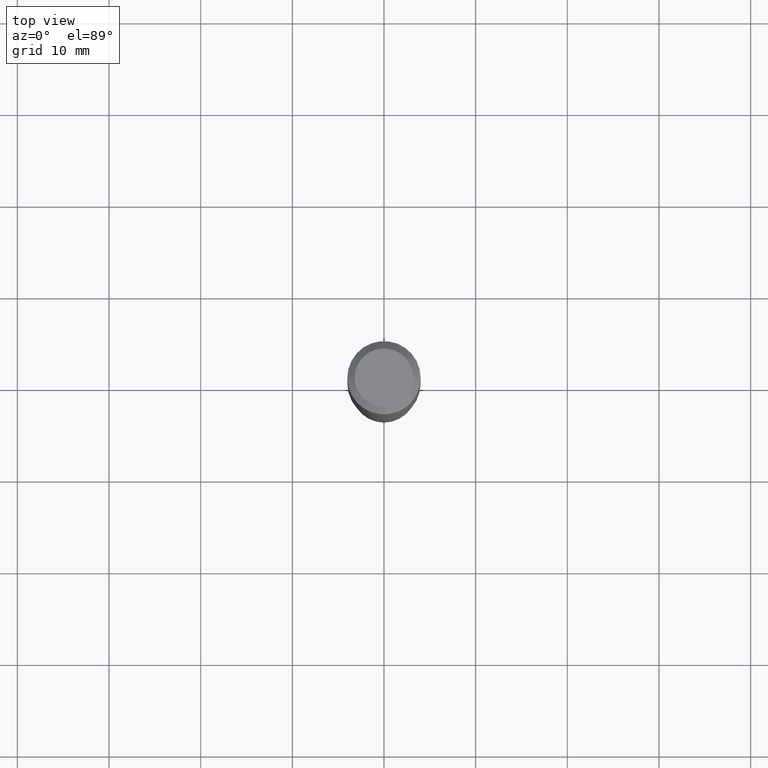
[diagram: clean part render]
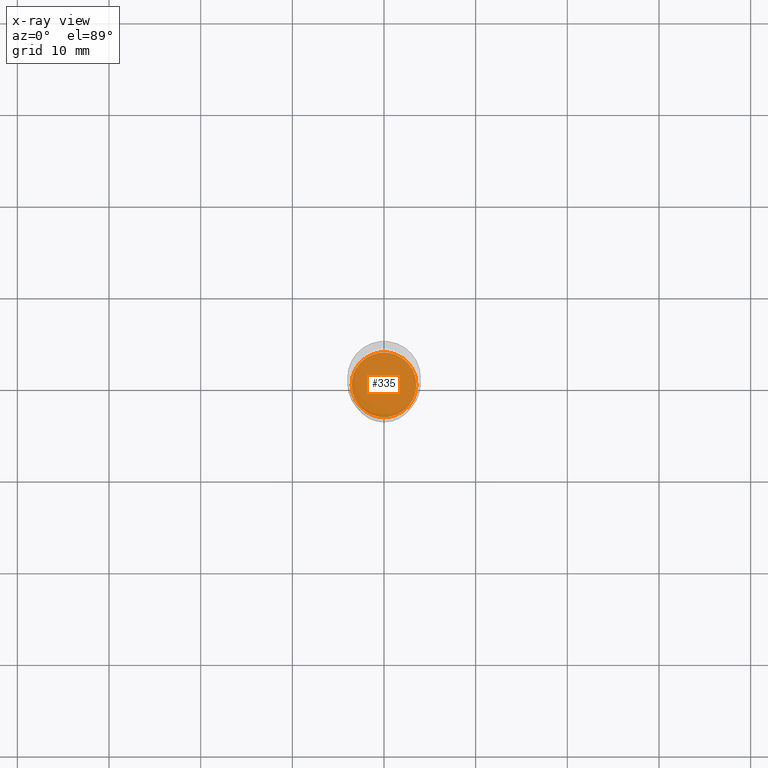
[diagram: x-ray — body ghosted, one internal face saturated and labeled with its STEP entity id]
A machine part, top view, then the same camera in x-ray: the body is ghosted and one INTERNAL B-rep face — a face not visible from any outside direction — is saturated and labeled: STEP entity #335.
In plain terms, the highlighted planar face has unit normal (-0, 0, 1).
Its self-contained STEP definition (entity closure, byte-faithful):
#8 = DIRECTION ( 'NONE',  ( -2.438088387897960049E-29, 3.491481338843145188E-15, 1.000000000000000000 ) ) ;
#56 = EDGE_LOOP ( 'NONE', ( #446, #296 ) ) ;
#58 = CARTESIAN_POINT ( 'NONE',  ( 1.909604190169210274E-29, -9.682353923400312483E-15, -1.775500000000000300 ) ) ;
#94 = DIRECTION ( 'NONE',  ( 1.000000000000000000, -6.982962677686265922E-15, 4.876176775795935793E-29 ) ) ;
#161 = PLANE ( 'NONE',  #237 ) ;
#201 = CARTESIAN_POINT ( 'NONE',  ( 4.341929865381710709E-29, -6.199125117116005297E-15, -1.775500000000000300 ) ) ;
#203 = DIRECTION ( 'NONE',  ( 1.000000000000000000, -6.982962677686267499E-15, 0.000000000000000000 ) ) ;
#222 = VERTEX_POINT ( 'NONE', #257 ) ;
#234 = DIRECTION ( 'NONE',  ( 1.000000000000000000, -6.982962677686267499E-15, 0.000000000000000000 ) ) ;
#237 = AXIS2_PLACEMENT_3D ( 'NONE', #58, #8, #94 ) ;
#257 = CARTESIAN_POINT ( 'NONE',  ( 0.1392500000000000127, -7.171502669983817495E-15, -1.775500000000000300 ) ) ;
#258 = CARTESIAN_POINT ( 'NONE',  ( 4.341929865381710709E-29, -6.199125117116005297E-15, -1.775500000000000300 ) ) ;
#273 = DIRECTION ( 'NONE',  ( -2.445468806185136597E-29, 3.491481338843145583E-15, 1.000000000000000000 ) ) ;
#296 = ORIENTED_EDGE ( 'NONE', *, *, #307, .F. ) ;
#307 = EDGE_CURVE ( 'NONE', #333, #222, #337, .T. ) ;
#333 = VERTEX_POINT ( 'NONE', #458 ) ;
#335 = ADVANCED_FACE ( 'NONE', ( #345 ), #161, .F. ) ;
#337 = CIRCLE ( 'NONE', #468, 0.1392500000000000127 ) ;
#343 = DIRECTION ( 'NONE',  ( -2.445468806185136597E-29, 3.491481338843145583E-15, 1.000000000000000000 ) ) ;
#345 = FACE_OUTER_BOUND ( 'NONE', #56, .T. ) ;
#362 = AXIS2_PLACEMENT_3D ( 'NONE', #201, #273, #234 ) ;
#392 = CIRCLE ( 'NONE', #362, 0.1392500000000000127 ) ;
#416 = EDGE_CURVE ( 'NONE', #222, #333, #392, .T. ) ;
#446 = ORIENTED_EDGE ( 'NONE', *, *, #416, .F. ) ;
#458 = CARTESIAN_POINT ( 'NONE',  ( -0.1392500000000000127, -5.207045130395954695E-15, -1.775500000000000300 ) ) ;
#468 = AXIS2_PLACEMENT_3D ( 'NONE', #258, #343, #203 ) ;